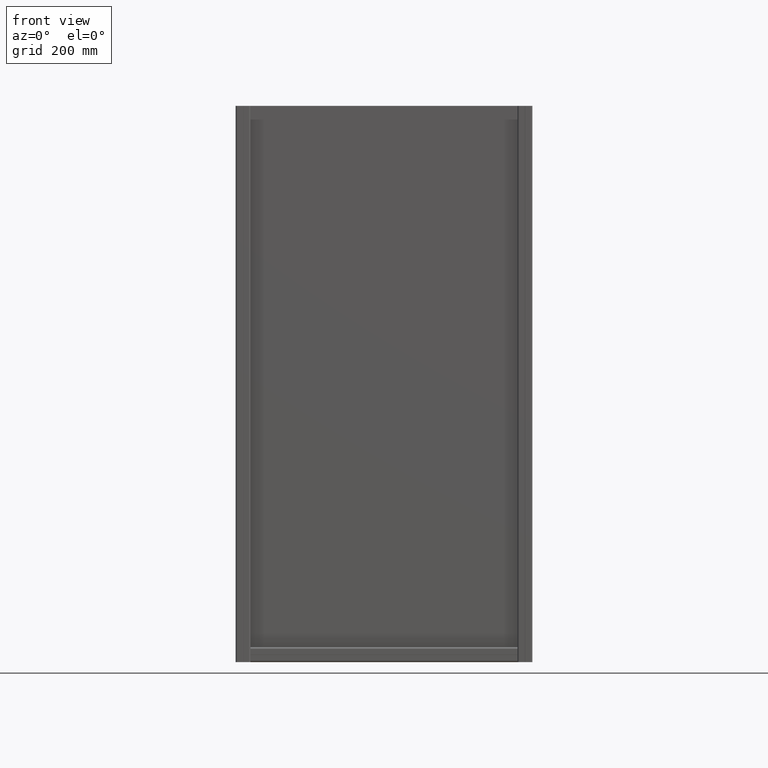
[diagram: clean part render]
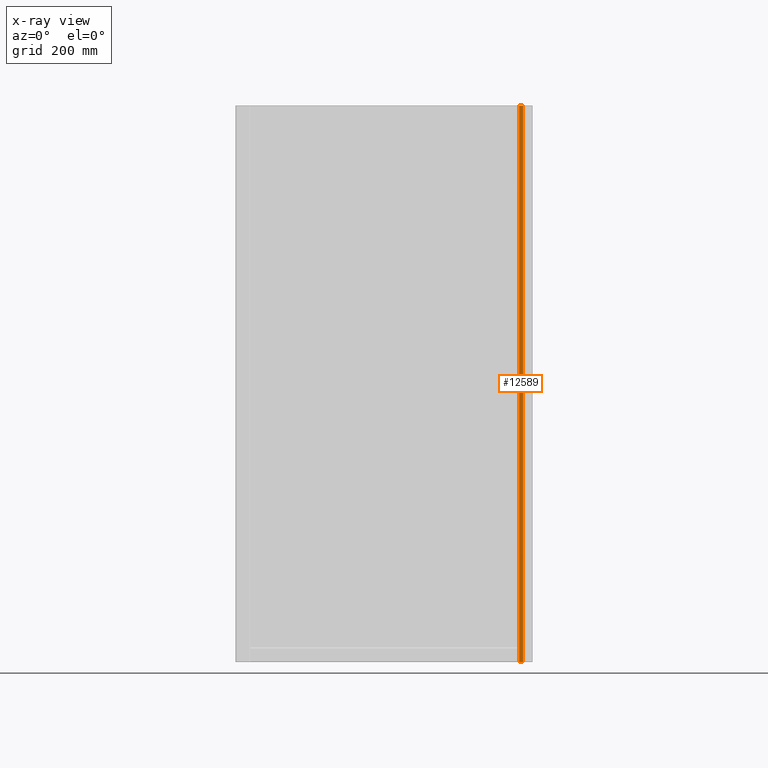
[diagram: x-ray — body ghosted, one internal face saturated and labeled with its STEP entity id]
A machine part, front view, then the same camera in x-ray: the body is ghosted and one INTERNAL B-rep face — a face not visible from any outside direction — is saturated and labeled: STEP entity #12589.
In plain terms, the highlighted planar face has unit normal (0, -1, 0).
Its self-contained STEP definition (entity closure, byte-faithful):
#439 = EDGE_LOOP ( 'NONE', ( #9850, #1173, #9747, #4385 ) ) ;
#1173 = ORIENTED_EDGE ( 'NONE', *, *, #5455, .F. ) ;
#1228 = VECTOR ( 'NONE', #9090, 1000.000000000000000 ) ;
#2437 = CARTESIAN_POINT ( 'NONE',  ( 5.100000000000370903, -19.99999999999819877, 600.0000000000000000 ) ) ;
#3566 = EDGE_CURVE ( 'NONE', #4363, #7568, #14083, .T. ) ;
#3992 = DIRECTION ( 'NONE',  ( 1.000000000000000000, 0.000000000000000000, 0.000000000000000000 ) ) ;
#4059 = EDGE_CURVE ( 'NONE', #5025, #11466, #12114, .T. ) ;
#4363 = VERTEX_POINT ( 'NONE', #2437 ) ;
#4385 = ORIENTED_EDGE ( 'NONE', *, *, #12992, .F. ) ;
#4846 = FACE_OUTER_BOUND ( 'NONE', #439, .T. ) ;
#4960 = CARTESIAN_POINT ( 'NONE',  ( 5.100000000000370903, -19.99999999999819877, -900.0000000000000000 ) ) ;
#5025 = VERTEX_POINT ( 'NONE', #10849 ) ;
#5455 = EDGE_CURVE ( 'NONE', #11466, #4363, #14614, .T. ) ;
#5459 = VECTOR ( 'NONE', #6984, 1000.000000000000000 ) ;
#5682 = LINE ( 'NONE', #6741, #5459 ) ;
#6285 = CARTESIAN_POINT ( 'NONE',  ( 5.100000000000360245, -19.99999999999819877, 800.0000000000000000 ) ) ;
#6516 = DIRECTION ( 'NONE',  ( -0.000000000000000000, 1.000000000000000000, 0.000000000000000000 ) ) ;
#6741 = CARTESIAN_POINT ( 'NONE',  ( 15.50000000000000000, -19.99999999999819877, 800.0000000000000000 ) ) ;
#6984 = DIRECTION ( 'NONE',  ( 0.000000000000000000, 0.000000000000000000, -1.000000000000000000 ) ) ;
#7568 = VERTEX_POINT ( 'NONE', #15140 ) ;
#7665 = PLANE ( 'NONE',  #13538 ) ;
#8769 = CARTESIAN_POINT ( 'NONE',  ( 15.50000000000000000, -19.99999999999819877, -900.0000000000000000 ) ) ;
#9090 = DIRECTION ( 'NONE',  ( -1.000000000000000000, 0.000000000000000000, 0.000000000000000000 ) ) ;
#9315 = VECTOR ( 'NONE', #10016, 1000.000000000000000 ) ;
#9747 = ORIENTED_EDGE ( 'NONE', *, *, #4059, .F. ) ;
#9850 = ORIENTED_EDGE ( 'NONE', *, *, #3566, .F. ) ;
#9900 = CARTESIAN_POINT ( 'NONE',  ( 5.100000000000370903, -19.99999999999819877, 600.0000000000000000 ) ) ;
#10016 = DIRECTION ( 'NONE',  ( 0.000000000000000000, 0.000000000000000000, 1.000000000000000000 ) ) ;
#10849 = CARTESIAN_POINT ( 'NONE',  ( 15.50000000000000000, -19.99999999999819877, -900.0000000000000000 ) ) ;
#11466 = VERTEX_POINT ( 'NONE', #4960 ) ;
#12114 = LINE ( 'NONE', #8769, #1228 ) ;
#12589 = ADVANCED_FACE ( 'NONE', ( #4846 ), #7665, .F. ) ;
#12992 = EDGE_CURVE ( 'NONE', #7568, #5025, #5682, .T. ) ;
#13538 = AXIS2_PLACEMENT_3D ( 'NONE', #6285, #6516, #3992 ) ;
#14083 = LINE ( 'NONE', #9900, #14311 ) ;
#14311 = VECTOR ( 'NONE', #16041, 1000.000000000000000 ) ;
#14614 = LINE ( 'NONE', #15009, #9315 ) ;
#15009 = CARTESIAN_POINT ( 'NONE',  ( 5.100000000000370903, -19.99999999999819877, 800.0000000000000000 ) ) ;
#15140 = CARTESIAN_POINT ( 'NONE',  ( 15.50000000000000000, -19.99999999999819877, 600.0000000000000000 ) ) ;
#16041 = DIRECTION ( 'NONE',  ( 1.000000000000000000, 0.000000000000000000, 0.000000000000000000 ) ) ;